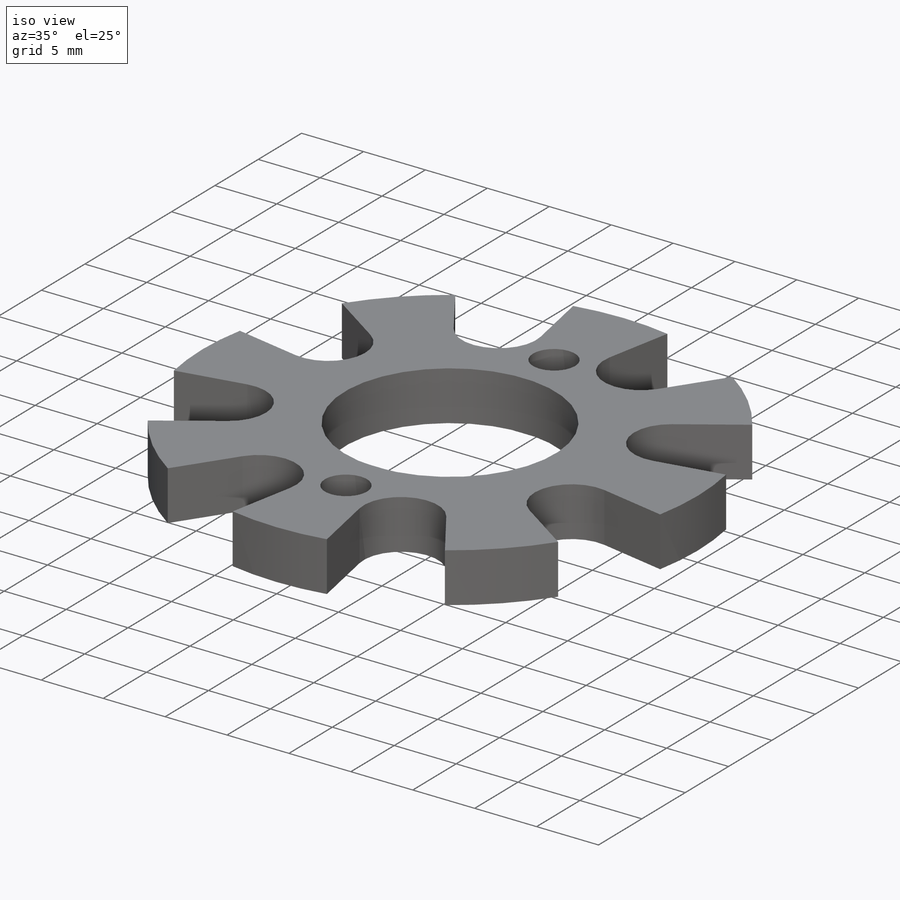
[diagram: iso view]
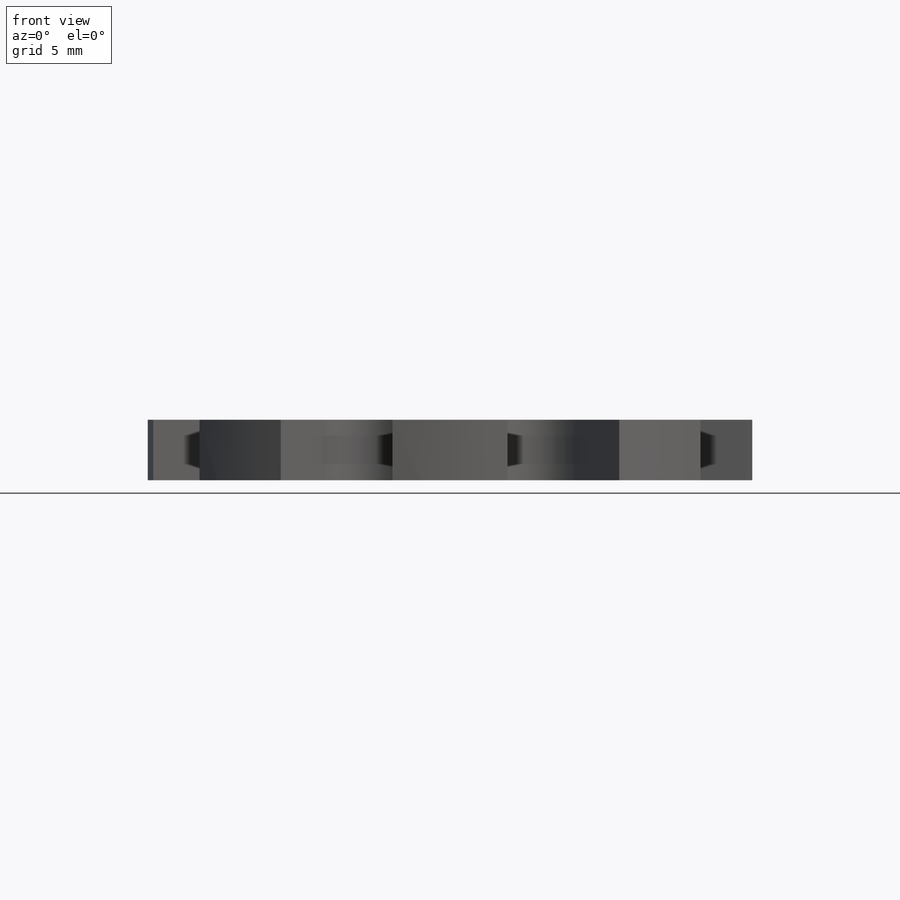
[diagram: front view]
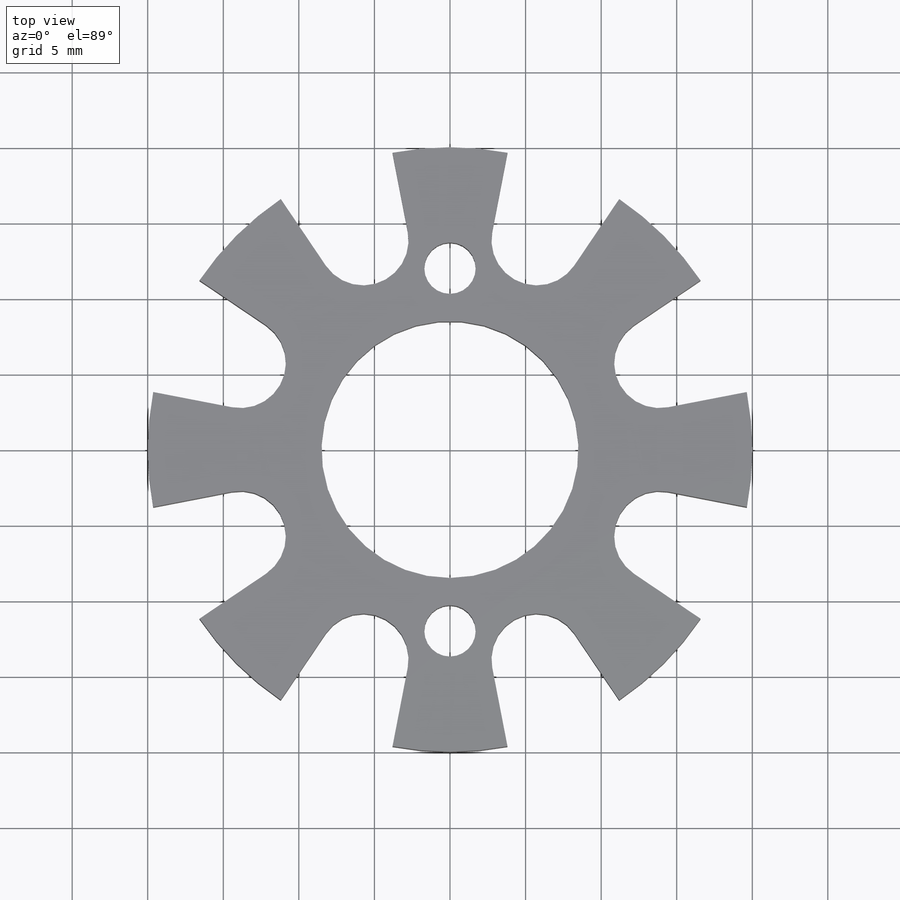
[diagram: top view]
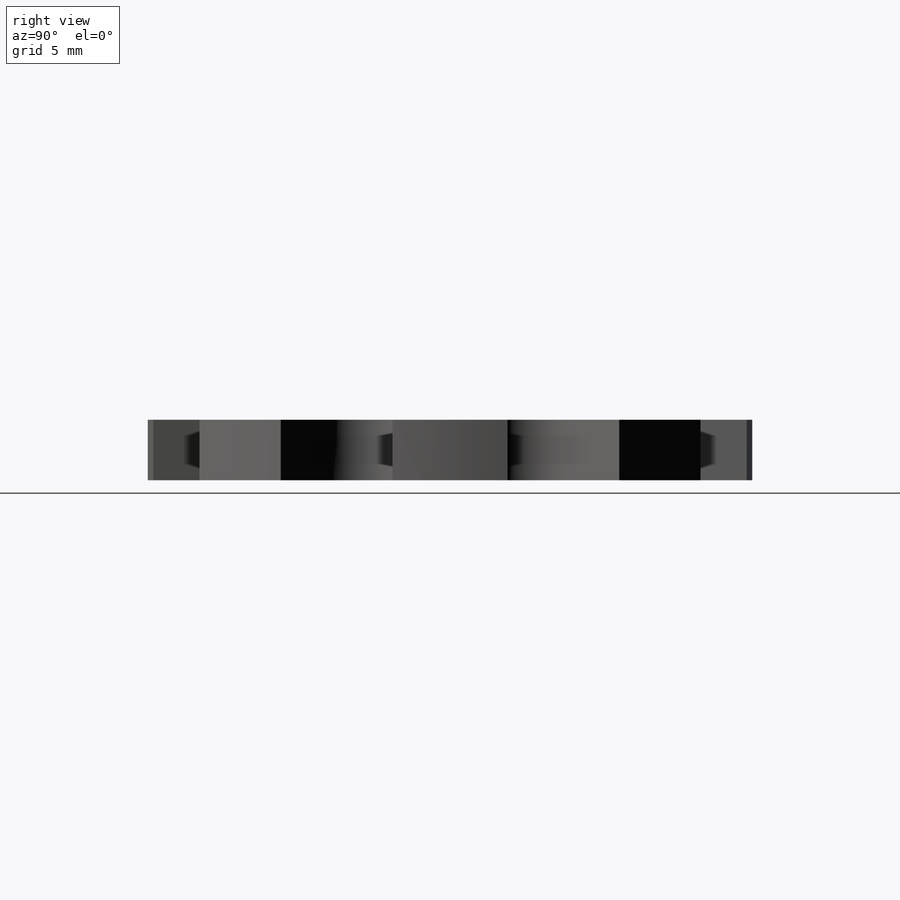
[diagram: right view]
SOLIDWORKS PART (.sldprt)
format: sldprt  version: not decoded by parser v0  size: 246,272 bytes
history: native  units: mm
features: sketch x4, cut_extrude x3, material x1, extrude x1, pattern_circular x1 (+11 scaffold rows collapsed)
feature tree (21):
  scaffold x11  (default folders/planes/origin — collapsed)
  material  "Acrylic (Medium-high impact)"
  sketch  "Sketch1"  dims[D1=40.0mm]
  sketch  "Sketch2"  dims[D1=8.0mm D2=3.4mm D3=12.0mm]
  extrude  "Boss-Extrude1"  Depth=4mm
  cut_extrude  "Cut-Extrude1"  [1 undecoded]
  sketch  "Sketch3"  dims[c1.D2=3.0mm c1.D1=20.0mm c2.D1=22.5deg c2.D2=~19.812058mm c2.D3=18.0mm c3.D2=~6.347771mm c3.D1=15.0mm c3.D3=20.0mm c4.D3=22.5deg c4.D2=20.0deg]
  cut_extrude  "Cut-Extrude3"  [1 undecoded]
  pattern_circular  "CirPattern1"  Count=8 Angle=360deg
  sketch  "Sketch4"  dims[D1=17.0mm]
  cut_extrude  "Cut-Extrude4"  [1 undecoded]
decode coverage: 6 of 9 modeling features carry decoded parameters
note: ~ marks probable driven/reference dimensions
note: 3 parameter values undecoded
summary: no parameter record found for 3 features
note: suppression state not decoded; provenance and decode notes live in map.json
